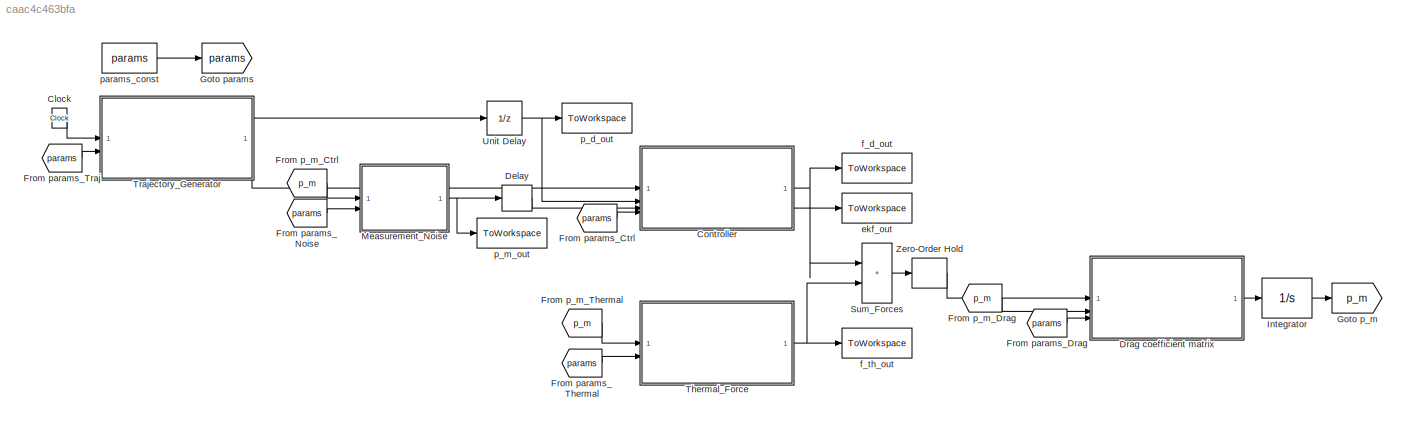
MODEL slx_caac4c463bfa
KIND model
CONFIG AbsTol = auto
CONFIG EnableMultiTasking = off
CONFIG FixedStep = 1e-6
CONFIG MaxStep = 6e-5
CONFIG MinStep = auto
CONFIG RelTol = 1e-6
CONFIG SampleTimeConstraint = Unconstrained
CONFIG SolverName = ode4
CONFIG StartTime = 0.0
CONFIG StopTime = T_sim
BLOCK [Clock] Clock
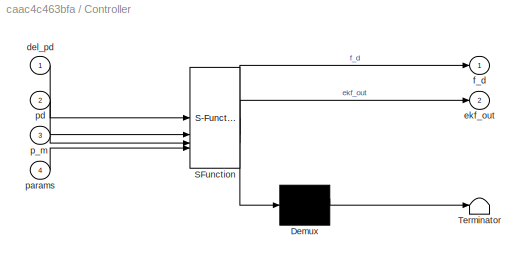
BLOCK [SubSystem] Controller
  ErrorFcn = Stateflow.Translate.translate
  PermitHierarchicalResolution = ExplicitOnly
  SFBlockType = MATLAB Function
  TreatAsAtomicUnit = on
BLOCK [Demux] Controller/ Demux 
  Outputs = 1
BLOCK [S-Function] Controller/ SFunction 
  EnableBusSupport = off
  FunctionName = sf_sfun
  PortCounts = [4 3]
  SFcnIsStateOwnerBlock = off
  SFunctionDeploymentMode = off
  Tag = Stateflow S-Function 1
BLOCK [Terminator] Controller/ Terminator 
BLOCK [Inport] Controller/del_pd
BLOCK [Outport] Controller/ekf_out
  Port = 2
BLOCK [Outport] Controller/f_d
BLOCK [Inport] Controller/p_m
  Port = 3
BLOCK [Inport] Controller/params
  Port = 4
BLOCK [Inport] Controller/pd
  Port = 2
BLOCK [Delay] Delay
  InitialCondition = [p0 p0]
  InputPortMap = u0
  SampleTime = Ts
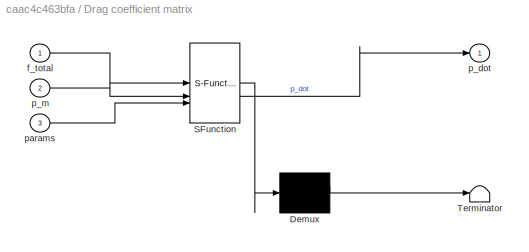
BLOCK [SubSystem] Drag coefficient matrix
  ErrorFcn = Stateflow.Translate.translate
  PermitHierarchicalResolution = ExplicitOnly
  SFBlockType = MATLAB Function
  TreatAsAtomicUnit = on
BLOCK [Demux] Drag coefficient matrix/ Demux 
  Outputs = 1
BLOCK [S-Function] Drag coefficient matrix/ SFunction 
  EnableBusSupport = off
  FunctionName = sf_sfun
  PortCounts = [3 2]
  SFcnIsStateOwnerBlock = off
  SFunctionDeploymentMode = off
  Tag = Stateflow S-Function 4
BLOCK [Terminator] Drag coefficient matrix/ Terminator 
BLOCK [Inport] Drag coefficient matrix/f_total
BLOCK [Outport] Drag coefficient matrix/p_dot
BLOCK [Inport] Drag coefficient matrix/p_m
  Port = 2
BLOCK [Inport] Drag coefficient matrix/params
  Port = 3
BLOCK [From] From p_m_Ctrl
  GotoTag = p_m
  NameLocation = top
BLOCK [From] From p_m_Drag
  GotoTag = p_m
BLOCK [From] From p_m_Thermal
  GotoTag = p_m
  NameLocation = top
BLOCK [From] From params_Ctrl
  GotoTag = params
BLOCK [From] From params_Drag
  GotoTag = params
BLOCK [From] From params_Noise
  GotoTag = params
BLOCK [From] From params_Thermal
  GotoTag = params
BLOCK [From] From params_Traj
  GotoTag = params
BLOCK [Goto] Goto p_m
  GotoTag = p_m
BLOCK [Goto] Goto params
  GotoTag = params
BLOCK [Integrator] Integrator
  InitialCondition = p0
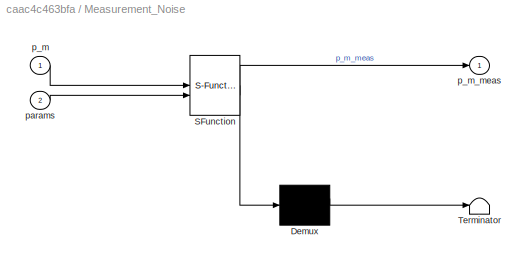
BLOCK [SubSystem] Measurement_Noise
  ErrorFcn = Stateflow.Translate.translate
  PermitHierarchicalResolution = ExplicitOnly
  SFBlockType = MATLAB Function
  TreatAsAtomicUnit = on
BLOCK [Demux] Measurement_Noise/ Demux 
  Outputs = 1
BLOCK [S-Function] Measurement_Noise/ SFunction 
  EnableBusSupport = off
  FunctionName = sf_sfun
  PortCounts = [2 2]
  SFcnIsStateOwnerBlock = off
  SFunctionDeploymentMode = off
  Tag = Stateflow S-Function 5
BLOCK [Terminator] Measurement_Noise/ Terminator 
BLOCK [Inport] Measurement_Noise/p_m
BLOCK [Outport] Measurement_Noise/p_m_meas
BLOCK [Inport] Measurement_Noise/params
  Port = 2
BLOCK [Sum] Sum_Forces
  IconShape = rectangular
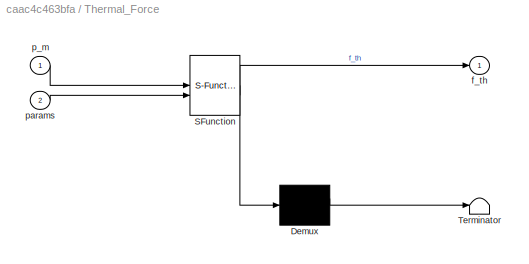
BLOCK [SubSystem] Thermal_Force
  ErrorFcn = Stateflow.Translate.translate
  PermitHierarchicalResolution = ExplicitOnly
  SFBlockType = MATLAB Function
  TreatAsAtomicUnit = on
BLOCK [Demux] Thermal_Force/ Demux 
  Outputs = 1
BLOCK [S-Function] Thermal_Force/ SFunction 
  EnableBusSupport = off
  FunctionName = sf_sfun
  PortCounts = [2 2]
  SFcnIsStateOwnerBlock = off
  SFunctionDeploymentMode = off
  Tag = Stateflow S-Function 3
BLOCK [Terminator] Thermal_Force/ Terminator 
BLOCK [Outport] Thermal_Force/f_th
BLOCK [Inport] Thermal_Force/p_m
BLOCK [Inport] Thermal_Force/params
  Port = 2
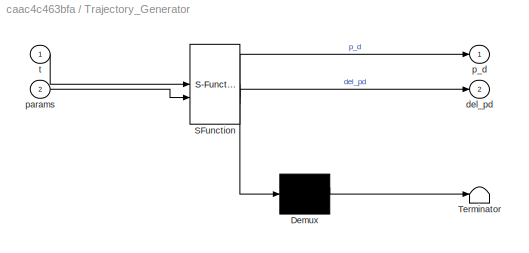
BLOCK [SubSystem] Trajectory_Generator
  ErrorFcn = Stateflow.Translate.translate
  PermitHierarchicalResolution = ExplicitOnly
  SFBlockType = MATLAB Function
  TreatAsAtomicUnit = on
BLOCK [Demux] Trajectory_Generator/ Demux 
  Outputs = 1
BLOCK [S-Function] Trajectory_Generator/ SFunction 
  EnableBusSupport = off
  FunctionName = sf_sfun
  PortCounts = [2 3]
  SFcnIsStateOwnerBlock = off
  SFunctionDeploymentMode = off
  Tag = Stateflow S-Function 2
BLOCK [Terminator] Trajectory_Generator/ Terminator 
BLOCK [Outport] Trajectory_Generator/del_pd
  Port = 2
BLOCK [Outport] Trajectory_Generator/p_d
BLOCK [Inport] Trajectory_Generator/params
  Port = 2
BLOCK [Inport] Trajectory_Generator/t
BLOCK [UnitDelay] Unit Delay
  HasFrameUpgradeWarning = on
  InitialCondition = p0
  NameLocation = top
  SampleTime = Ts
BLOCK [ZeroOrderHold] Zero-Order Hold
  SampleTime = Ts
BLOCK [ToWorkspace] ekf_out
  FixptAsFi = on
  MaxDataPoints = inf
  SampleTime = Ts
  Save2DSignal = 2-D array (concatenate along first dimension)
  VariableName = ekf_out
BLOCK [ToWorkspace] f_d_out
  FixptAsFi = on
  MaxDataPoints = inf
  NameLocation = top
  SampleTime = Ts
  Save2DSignal = 2-D array (concatenate along first dimension)
  VariableName = f_d_out
BLOCK [ToWorkspace] f_th_out
  FixptAsFi = on
  MaxDataPoints = inf
  SampleTime = Ts
  Save2DSignal = 2-D array (concatenate along first dimension)
  VariableName = f_th_out
BLOCK [ToWorkspace] p_d_out
  FixptAsFi = on
  MaxDataPoints = inf
  NameLocation = top
  SampleTime = Ts
  Save2DSignal = 2-D array (concatenate along first dimension)
  VariableName = p_d_out
BLOCK [ToWorkspace] p_m_out
  FixptAsFi = on
  MaxDataPoints = inf
  SampleTime = Ts
  Save2DSignal = 2-D array (concatenate along first dimension)
  VariableName = p_m_out
BLOCK [Constant] params_const
  OutDataTypeStr = Bus: ParamsBus
  Value = params
LINE Clock:1 -> Trajectory_Generator:1
NET Controller:1 -> Sum_Forces:1, f_d_out:1
LINE Controller:2 -> ekf_out:1
LINE Delay:1 -> Controller:3
LINE Drag coefficient matrix:1 -> Integrator:1
LINE From p_m_Ctrl:1 -> Measurement_Noise:1
LINE From p_m_Drag:1 -> Drag coefficient matrix:2
LINE From p_m_Thermal:1 -> Thermal_Force:1
LINE From params_Ctrl:1 -> Controller:4
LINE From params_Drag:1 -> Drag coefficient matrix:3
LINE From params_Noise:1 -> Measurement_Noise:2
LINE From params_Thermal:1 -> Thermal_Force:2
LINE From params_Traj:1 -> Trajectory_Generator:2
LINE Integrator:1 -> Goto p_m:1
NET Measurement_Noise:1 -> Delay:1, p_m_out:1
LINE Sum_Forces:1 -> Zero-Order Hold:1
NET Thermal_Force:1 -> Sum_Forces:2, f_th_out:1
LINE Trajectory_Generator:1 -> Unit Delay:1
LINE Trajectory_Generator:2 -> Controller:1
NET Unit Delay:1 -> Controller:2, p_d_out:1
LINE Zero-Order Hold:1 -> Drag coefficient matrix:1
LINE params_const:1 -> Goto params:1
note: NET lines group one-source signal fan-out (src -> all destinations, sorted); 1:1 wires keep LINE
CHART Controller states=1 transitions=1
  STATE_LABEL 'eML_blk_kernel()'
  STATE_LABEL 'SCRIPT:\nfunction [f_d, ekf_out] = fcn(del_pd, pd, p_m, params)\n%#codegen\n    [f_d, ekf_out] = motion_control_law(del_pd, pd, p_m, params);\nend\n'
CHART Trajectory_Generator states=1 transitions=1
  STATE_LABEL 'eML_blk_kernel()'
  STATE_LABEL 'SCRIPT:\nfunction [p_d, del_pd] = fcn(t, params)\n%#codegen\n    [p_d, del_pd] = trajectory_generator(t, params);\nend\n'
CHART Thermal_Force states=1 transitions=1
  STATE_LABEL 'eML_blk_kernel()'
  STATE_LABEL 'SCRIPT:\nfunction f_th = fcn(p_m, params)\n%#codegen\n    if params.thermal.enable > 0.5\n        f_th = calc_thermal_force(p_m, params);\n    else\n        f_th = zeros(3, 1);\n    end\nend'
CHART Drag coefficient matrix states=1 transitions=1
  STATE_LABEL 'eML_blk_kernel()'
  STATE_LABEL 'SCRIPT:\nfunction p_dot = fcn(f_total, p_m, params)\n%#codegen\n    [Gamma_inv, ~] = calc_gamma_inv(p_m, params);\n    p_dot = Gamma_inv * f_total;\nend'
CHART Measurement_Noise states=1 transitions=1
  STATE_LABEL 'eML_blk_kernel()'
  STATE_LABEL 'SCRIPT:\nfunction p_m_meas = fcn(p_m, params)\n  %#codegen\n      persistent seed_init\n      if isempty(seed_init)\n          rng(params.ctrl.meas_noise_seed);\n          seed_init = true;\n      end\n\n      if params.ctrl.meas_noise_enable > 0.5\n          p_m_meas = p_m + params.ctrl.meas_noise_std .* randn(3,1);\n      else\n          p_m_meas = p_m;\n      end\n  end'
CHART  states=0 transitions=0
CHART  states=0 transitions=0
CHART  states=0 transitions=0
CHART  states=0 transitions=0
CHART  states=0 transitions=0
